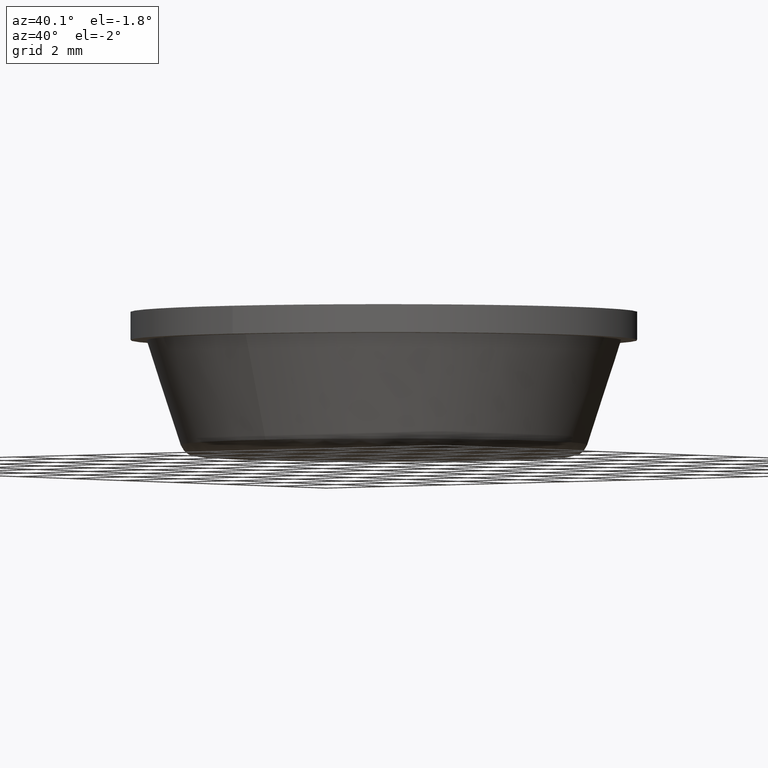
[diagram: clean part render]
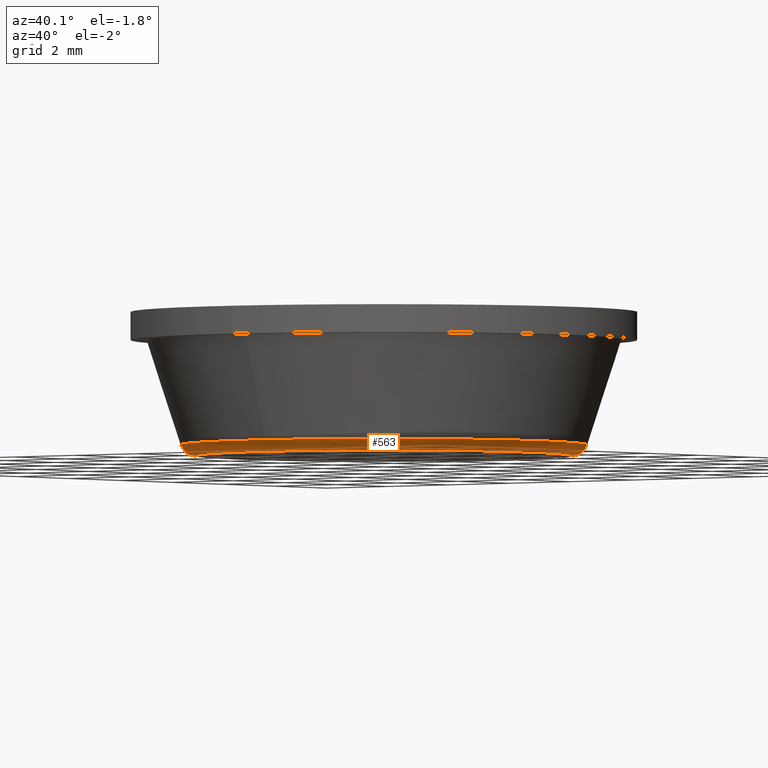
[diagram: same view with one face highlighted and labeled with its STEP entity id]
A machine part, auxiliary view. The second image highlights one B-rep face of the part: STEP entity #563.
In plain terms, the highlighted face is a freeform B-spline surface patch.
Its self-contained STEP definition (entity closure, byte-faithful):
#77=CARTESIAN_POINT('',(-4.732829137074683,-1.872551593788798,0.276393202250402));
#78=VERTEX_POINT('',#77);
#84=CARTESIAN_POINT('',(0.399341545321534,-5.074115434469849,0.276393202250665));
#85=VERTEX_POINT('',#84);
#86=CARTESIAN_POINT('',(0.399341545321534,-5.074115434469849,0.276393202250665));
#87=CARTESIAN_POINT('',(0.199979006931943,-5.089805606518070,0.276393202250013));
#88=CARTESIAN_POINT('',(0.0,-5.089805606518071,0.276393202250013));
#89=CARTESIAN_POINT('',(-3.459917321607990,-5.089805606518072,0.276393202250013));
#90=CARTESIAN_POINT('',(-4.732829137074683,-1.872551593788798,0.276393202250402));
#98=(BOUNDED_CURVE()B_SPLINE_CURVE(2,(#86,#87,#88,#89,#90),.UNSPECIFIED.,.F.,.U.)B_SPLINE_CURVE_WITH_KNOTS((3,2,3),(0.736331300632524,0.750000000000000,0.937532549939335),.UNSPECIFIED.)CURVE()GEOMETRIC_REPRESENTATION_ITEM()RATIONAL_B_SPLINE_CURVE((0.969723356171309,0.983986122581066,1.0,0.780291951263895,0.890203187501209))REPRESENTATION_ITEM(''));
#99=EDGE_CURVE('',#85,#78,#98,.T.);
#181=CARTESIAN_POINT('',(5.089805606518071,0.0,0.276393202250013));
#182=VERTEX_POINT('',#181);
#183=CARTESIAN_POINT('',(5.089805606518071,0.0,0.276393202250013));
#184=CARTESIAN_POINT('',(5.089805606518071,-4.704967907047252,0.276393202250012));
#185=CARTESIAN_POINT('',(0.399341545321534,-5.074115434469849,0.276393202250665));
#193=(BOUNDED_CURVE()B_SPLINE_CURVE(2,(#183,#184,#185),.UNSPECIFIED.,.F.,.U.)B_SPLINE_CURVE_WITH_KNOTS((3,3),(0.500000000000000,0.736331300632524),.UNSPECIFIED.)CURVE()GEOMETRIC_REPRESENTATION_ITEM()RATIONAL_B_SPLINE_CURVE((1.0,0.723120658605481,0.969723356171309))REPRESENTATION_ITEM(''));
#194=EDGE_CURVE('',#182,#85,#193,.T.);
#196=CARTESIAN_POINT('',(0.877675751714208,5.013562245248458,0.276393202245518));
#197=VERTEX_POINT('',#196);
#198=CARTESIAN_POINT('',(0.877675751714208,5.013562245248458,0.276393202245518));
#199=CARTESIAN_POINT('',(5.089805606518071,4.276185494786597,0.276393202250013));
#200=CARTESIAN_POINT('',(5.089805606518071,0.0,0.276393202250013));
#208=(BOUNDED_CURVE()B_SPLINE_CURVE(2,(#198,#199,#200),.UNSPECIFIED.,.F.,.U.)B_SPLINE_CURVE_WITH_KNOTS((3,3),(0.279646299375439,0.500000000000000),.UNSPECIFIED.)CURVE()GEOMETRIC_REPRESENTATION_ITEM()RATIONAL_B_SPLINE_CURVE((0.938771991543156,0.741839581386466,1.0))REPRESENTATION_ITEM(''));
#209=EDGE_CURVE('',#197,#182,#208,.T.);
#211=CARTESIAN_POINT('',(-4.878690106847490,1.450691141708440,0.276393454745976));
#212=VERTEX_POINT('',#211);
#228=CARTESIAN_POINT('',(-5.089805606518071,0.0,0.276393202250013));
#229=VERTEX_POINT('',#228);
#230=CARTESIAN_POINT('',(-5.089805606518071,0.0,0.276393202250013));
#231=CARTESIAN_POINT('',(-5.089805606518071,0.740707129534679,0.276393202250013));
#232=CARTESIAN_POINT('',(-4.878690106847490,1.450691141708439,0.276393454745976));
#240=(BOUNDED_CURVE()B_SPLINE_CURVE(2,(#230,#231,#232),.UNSPECIFIED.,.F.,.U.)B_SPLINE_CURVE_WITH_KNOTS((3,3),(0.0,0.048526611977056),.UNSPECIFIED.)CURVE()GEOMETRIC_REPRESENTATION_ITEM()RATIONAL_B_SPLINE_CURVE((1.0,0.943147537679714,0.908365934391083))REPRESENTATION_ITEM(''));
#241=EDGE_CURVE('',#229,#212,#240,.T.);
#243=CARTESIAN_POINT('',(-4.732829137074683,-1.872551593788799,0.276393202250402));
#244=CARTESIAN_POINT('',(-5.089805606518071,-0.970302149002113,0.276393202250013));
#245=CARTESIAN_POINT('',(-5.089805606518071,0.0,0.276393202250013));
#253=(BOUNDED_CURVE()B_SPLINE_CURVE(2,(#243,#244,#245),.UNSPECIFIED.,.F.,.U.)B_SPLINE_CURVE_WITH_KNOTS((3,3),(0.937532549939335,1.0),.UNSPECIFIED.)CURVE()GEOMETRIC_REPRESENTATION_ITEM()RATIONAL_B_SPLINE_CURVE((0.890203187501210,0.926814829922653,1.0))REPRESENTATION_ITEM(''));
#254=EDGE_CURVE('',#78,#229,#253,.T.);
#446=CARTESIAN_POINT('',(0.878806323483278,5.020017097255795,0.298758745948526));
#447=CARTESIAN_POINT('',(1.169594691955808,4.969111562063745,0.298758745948526));
#448=CARTESIAN_POINT('',(1.452560403880945,4.884970878522400,0.298758745948526));
#449=CARTESIAN_POINT('',(6.337531282403345,3.432410474641454,0.298758745948526));
#450=CARTESIAN_POINT('',(4.884970878522400,-1.452560403880945,0.298758745948526));
#451=CARTESIAN_POINT('',(3.432410474641456,-6.337531282403344,0.298758745948526));
#452=CARTESIAN_POINT('',(-1.452560403880943,-4.884970878522401,0.298758745948526));
#453=CARTESIAN_POINT('',(-6.337531282403344,-3.432410474641456,0.298758745948526));
#454=CARTESIAN_POINT('',(-4.884970878522401,1.452560403880943,0.298758745948526));
#455=CARTESIAN_POINT('',(0.864501099565993,4.938301175640435,-0.018335001152351));
#456=CARTESIAN_POINT('',(1.150556010150949,4.888224281595009,-0.018335001152351));
#457=CARTESIAN_POINT('',(1.428915601521608,4.805453241496649,-0.018335001152351));
#458=CARTESIAN_POINT('',(6.234368843018255,3.376537639975042,-0.018335001152351));
#459=CARTESIAN_POINT('',(4.805453241496649,-1.428915601521608,-0.018335001152351));
#460=CARTESIAN_POINT('',(3.376537639975044,-6.234368843018255,-0.018335001152351));
#461=CARTESIAN_POINT('',(-1.428915601521607,-4.805453241496650,-0.018335001152351));
#462=CARTESIAN_POINT('',(-6.234368843018255,-3.376537639975044,-0.018335001152351));
#463=CARTESIAN_POINT('',(-4.805453241496650,1.428915601521605,-0.018335001152351));
#464=CARTESIAN_POINT('',(0.808076875971959,4.615988329712414,0.000673209411410));
#465=CARTESIAN_POINT('',(1.075461565960180,4.569179852408078,0.000673209411410));
#466=CARTESIAN_POINT('',(1.335653194524397,4.491811109283043,0.000673209411410));
#467=CARTESIAN_POINT('',(5.827464303807438,3.156157914758646,0.000673209411410));
#468=CARTESIAN_POINT('',(4.491811109283043,-1.335653194524397,0.000673209411410));
#469=CARTESIAN_POINT('',(3.156157914758649,-5.827464303807438,0.000673209411410));
#470=CARTESIAN_POINT('',(-1.335653194524396,-4.491811109283044,0.000673209411410));
#471=CARTESIAN_POINT('',(-5.827464303807438,-3.156157914758649,0.000673209411410));
#472=CARTESIAN_POINT('',(-4.491811109283044,1.335653194524396,0.000673209411410));
#480=(BOUNDED_SURFACE()B_SPLINE_SURFACE(2,2,((#446,#455,#464),(#447,#456,#465),(#448,#457,#466),(#449,#458,#467),(#450,#459,#468),(#451,#460,#469),(#452,#461,#470),(#453,#462,#471),(#454,#463,#472)),.UNSPECIFIED.,.F.,.F.,.U.)B_SPLINE_SURFACE_WITH_KNOTS((3,2,2,2,3),(3,3),(0.0,0.675513244057542,9.119436847529892,17.563360451002239,26.007284054474589),(0.0,0.571806611584248),.UNSPECIFIED.)GEOMETRIC_REPRESENTATION_ITEM()RATIONAL_B_SPLINE_SURFACE(((0.876825357577632,0.679709906114283,0.880694277430479),(0.894860977908854,0.693691013864081,0.898809478454658),(0.916331950593392,0.710335186733245,0.920375190042172),(0.647944536082484,0.502282827454490,0.650803538114677),(0.916331950593392,0.710335186733245,0.920375190042172),(0.647944536082484,0.502282827454490,0.650803538114677),(0.916331950593392,0.710335186733245,0.920375190042172),(0.647944536082484,0.502282827454490,0.650803538114677),(0.916331950593392,0.710335186733245,0.920375190042172)))REPRESENTATION_ITEM('')SURFACE());
#481=ORIENTED_EDGE('',*,*,#209,.T.);
#482=ORIENTED_EDGE('',*,*,#194,.T.);
#483=ORIENTED_EDGE('',*,*,#99,.T.);
#484=ORIENTED_EDGE('',*,*,#254,.T.);
#485=ORIENTED_EDGE('',*,*,#241,.T.);
#486=CARTESIAN_POINT('',(-4.514046218408184,1.342264869376201,-4.168770E-015));
#487=VERTEX_POINT('',#486);
#488=CARTESIAN_POINT('',(-4.878690106847490,1.450691141708440,0.276393454745976));
#489=CARTESIAN_POINT('',(-4.792609376474950,1.425095612470213,1.231670E-010));
#490=CARTESIAN_POINT('',(-4.514046218408184,1.342264869376200,-4.168770E-015));
#498=(BOUNDED_CURVE()B_SPLINE_CURVE(2,(#488,#489,#490),.UNSPECIFIED.,.F.,.U.)B_SPLINE_CURVE_WITH_KNOTS((3,3),(-1.673208779246349,-0.312243931240096),.UNSPECIFIED.)CURVE()GEOMETRIC_REPRESENTATION_ITEM()RATIONAL_B_SPLINE_CURVE((0.898480002554690,0.728370818350311,0.902155871954828))REPRESENTATION_ITEM(''));
#499=EDGE_CURVE('',#212,#487,#498,.T.);
#500=ORIENTED_EDGE('',*,*,#499,.T.);
#501=CARTESIAN_POINT('',(-4.709383000000000,0.0,0.0));
#502=VERTEX_POINT('',#501);
#503=CARTESIAN_POINT('',(-4.709383000000000,0.0,0.0));
#504=CARTESIAN_POINT('',(-4.709383000000000,0.685345895502756,0.0));
#505=CARTESIAN_POINT('',(-4.514046218408184,1.342264869376201,-4.168770E-015));
#513=(BOUNDED_CURVE()B_SPLINE_CURVE(2,(#503,#504,#505),.UNSPECIFIED.,.F.,.U.)B_SPLINE_CURVE_WITH_KNOTS((3,3),(0.0,0.048526662064734),.UNSPECIFIED.)CURVE()GEOMETRIC_REPRESENTATION_ITEM()RATIONAL_B_SPLINE_CURVE((1.0,0.943147478998350,0.908365862590102))REPRESENTATION_ITEM(''));
#514=EDGE_CURVE('',#502,#487,#513,.T.);
#515=ORIENTED_EDGE('',*,*,#514,.F.);
#516=CARTESIAN_POINT('',(4.709383000000000,0.0,0.0));
#517=VERTEX_POINT('',#516);
#518=CARTESIAN_POINT('',(4.709383000000000,0.0,0.0));
#519=CARTESIAN_POINT('',(4.709383000000000,-4.709383000000000,0.0));
#520=CARTESIAN_POINT('',(0.0,-4.709383000000000,0.0));
#521=CARTESIAN_POINT('',(-4.709383000000000,-4.709383000000000,0.0));
#522=CARTESIAN_POINT('',(-4.709383000000000,0.0,0.0));
#530=(BOUNDED_CURVE()B_SPLINE_CURVE(2,(#518,#519,#520,#521,#522),.UNSPECIFIED.,.F.,.U.)B_SPLINE_CURVE_WITH_KNOTS((3,2,3),(0.500000000000000,0.750000000000000,1.0),.UNSPECIFIED.)CURVE()GEOMETRIC_REPRESENTATION_ITEM()RATIONAL_B_SPLINE_CURVE((1.0,0.707106781186548,1.0,0.707106781186548,1.0))REPRESENTATION_ITEM(''));
#531=EDGE_CURVE('',#517,#502,#530,.T.);
#532=ORIENTED_EDGE('',*,*,#531,.F.);
#533=CARTESIAN_POINT('',(0.812076449406390,4.638838225777398,-4.163688E-015));
#534=VERTEX_POINT('',#533);
#535=CARTESIAN_POINT('',(0.812076449406390,4.638838225777398,-4.163688E-015));
#536=CARTESIAN_POINT('',(4.709382999999999,3.956574539510612,0.0));
#537=CARTESIAN_POINT('',(4.709383000000000,0.0,0.0));
#545=(BOUNDED_CURVE()B_SPLINE_CURVE(2,(#535,#536,#537),.UNSPECIFIED.,.F.,.U.)B_SPLINE_CURVE_WITH_KNOTS((3,3),(0.279646299376955,0.500000000000000),.UNSPECIFIED.)CURVE()GEOMETRIC_REPRESENTATION_ITEM()RATIONAL_B_SPLINE_CURVE((0.938771991540446,0.741839581388242,1.0))REPRESENTATION_ITEM(''));
#546=EDGE_CURVE('',#534,#517,#545,.T.);
#547=ORIENTED_EDGE('',*,*,#546,.F.);
#548=CARTESIAN_POINT('',(0.877675751714208,5.013562245248458,0.276393202245518));
#549=CARTESIAN_POINT('',(0.862189857100697,4.925101903943657,6.055387E-010));
#550=CARTESIAN_POINT('',(0.812076449406390,4.638838225777398,-4.163688E-015));
#558=(BOUNDED_CURVE()B_SPLINE_CURVE(2,(#548,#549,#550),.UNSPECIFIED.,.F.,.U.)B_SPLINE_CURVE_WITH_KNOTS((3,3),(-1.673208012388979,-0.312243933166008),.UNSPECIFIED.)CURVE()GEOMETRIC_REPRESENTATION_ITEM()RATIONAL_B_SPLINE_CURVE((0.859742858480119,0.696968018905094,0.863260429847121))REPRESENTATION_ITEM(''));
#559=EDGE_CURVE('',#197,#534,#558,.T.);
#560=ORIENTED_EDGE('',*,*,#559,.F.);
#561=EDGE_LOOP('',(#481,#482,#483,#484,#485,#500,#515,#532,#547,#560));
#562=FACE_OUTER_BOUND('',#561,.T.);
#563=ADVANCED_FACE('',(#562),#480,.T.);